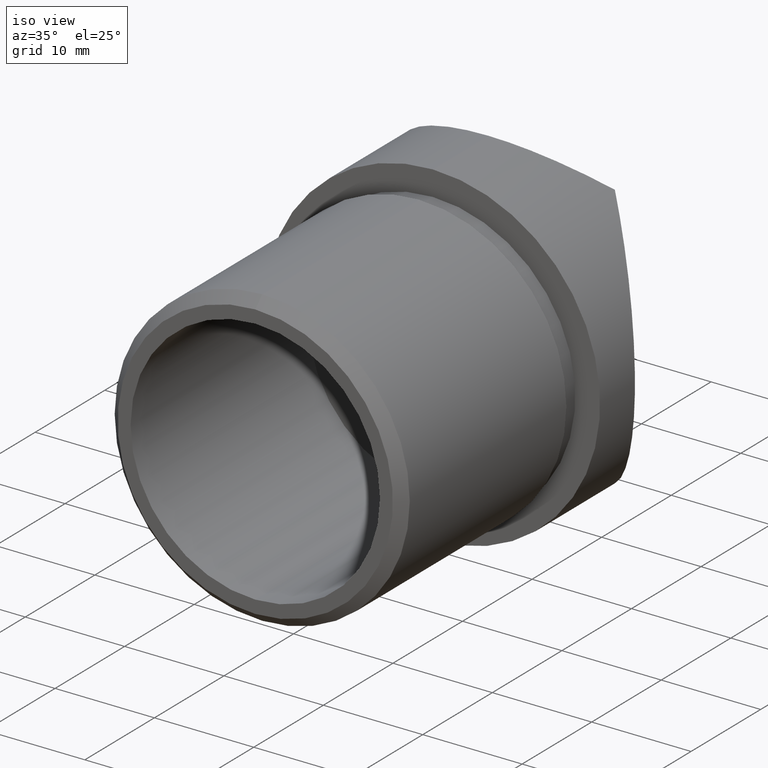
[diagram: clean part render]
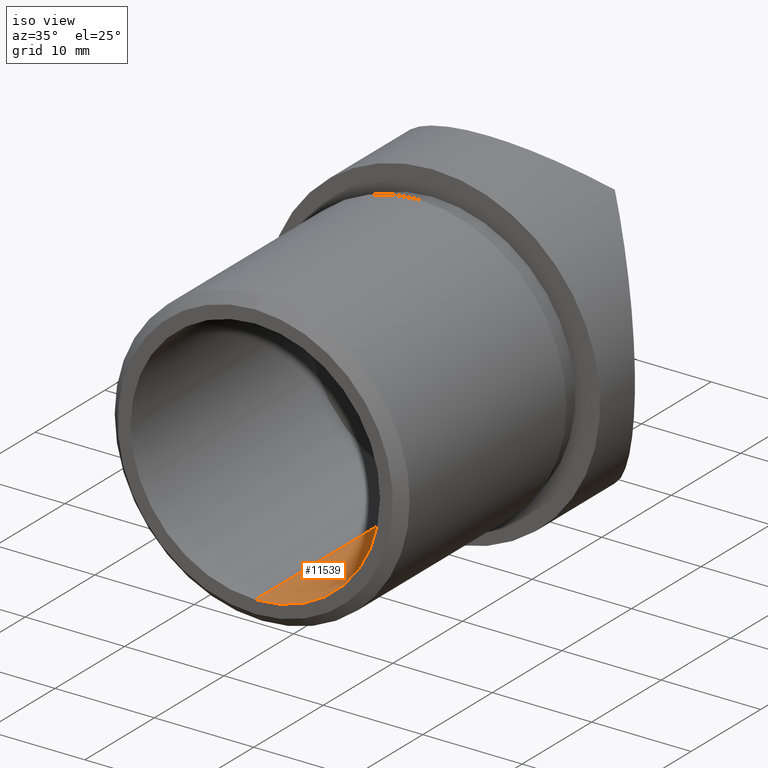
[diagram: same view with one face highlighted and labeled with its STEP entity id]
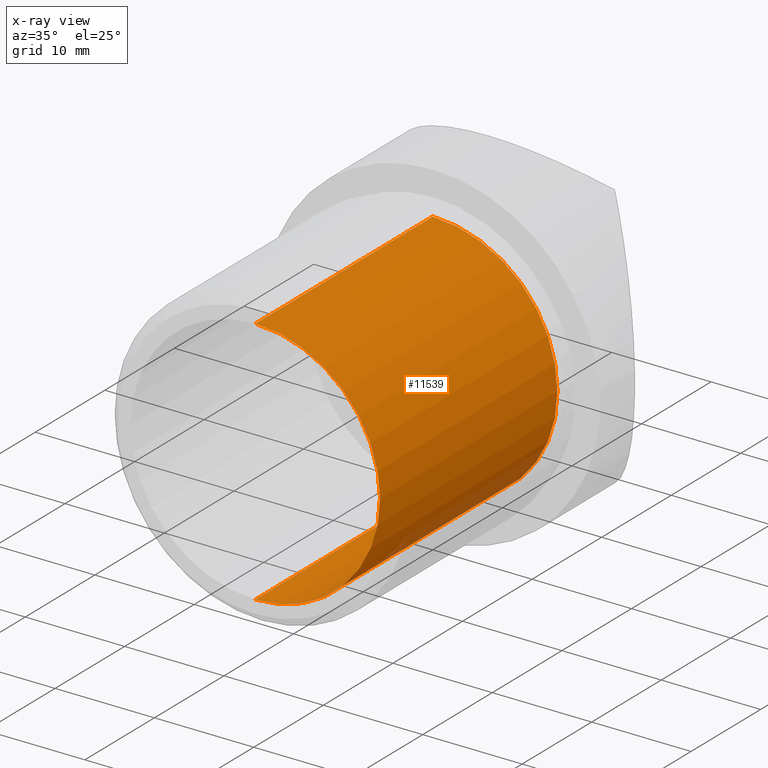
[diagram: x-ray of the same camera — body ghosted, the highlighted face saturated]
A machine part, iso view. The second image highlights one B-rep face of the part: STEP entity #11539.
The next image is the same camera in x-ray: the body ghosted, the highlighted face saturated — about 3% of this face is hidden behind the body in this view.
In plain terms, the highlighted cylindrical surface (partial cylindrical patch) has radius 12.55 mm, axis along (-0, 1, -0).
Its self-contained STEP definition (entity closure, byte-faithful):
#186 = CARTESIAN_POINT ( 'NONE',  ( 0.0000000000000000000, -25.50000000000000400, 0.0000000000000000000 ) ) ;
#304 = DIRECTION ( 'NONE',  ( -0.0000000000000000000, 1.000000000000000000, -0.0000000000000000000 ) ) ;
#387 = DIRECTION ( 'NONE',  ( 0.0000000000000000000, 0.0000000000000000000, 1.000000000000000000 ) ) ;
#593 = ORIENTED_EDGE ( 'NONE', *, *, #1679, .F. ) ;
#1050 = LINE ( 'NONE', #4892, #8377 ) ;
#1201 = DIRECTION ( 'NONE',  ( 0.0000000000000000000, 0.0000000000000000000, -1.000000000000000000 ) ) ;
#1203 = VERTEX_POINT ( 'NONE', #6114 ) ;
#1679 = EDGE_CURVE ( 'NONE', #12928, #1203, #1050, .T. ) ;
#1760 = CARTESIAN_POINT ( 'NONE',  ( 0.0000000000000000000, -2.000000000000000000, 12.55000000000000100 ) ) ;
#2168 = ORIENTED_EDGE ( 'NONE', *, *, #7227, .T. ) ;
#2666 = CIRCLE ( 'NONE', #6760, 12.55000000000000100 ) ;
#2823 = DIRECTION ( 'NONE',  ( -0.0000000000000000000, 1.000000000000000000, -0.0000000000000000000 ) ) ;
#3652 = VECTOR ( 'NONE', #6746, 1000.000000000000000 ) ;
#4325 = CARTESIAN_POINT ( 'NONE',  ( 0.0000000000000000000, -2.000000000000000000, 0.0000000000000000000 ) ) ;
#4369 = AXIS2_PLACEMENT_3D ( 'NONE', #11791, #5800, #12798 ) ;
#4586 = CYLINDRICAL_SURFACE ( 'NONE', #10561, 12.55000000000000100 ) ;
#4892 = CARTESIAN_POINT ( 'NONE',  ( 1.536931732929928400E-015, -2.000000000000000000, -12.55000000000000100 ) ) ;
#5127 = ORIENTED_EDGE ( 'NONE', *, *, #11796, .T. ) ;
#5647 = CARTESIAN_POINT ( 'NONE',  ( 1.536931732929928400E-015, -25.50000000000000400, -12.55000000000000100 ) ) ;
#5657 = VERTEX_POINT ( 'NONE', #9645 ) ;
#5800 = DIRECTION ( 'NONE',  ( 0.0000000000000000000, -1.000000000000000000, 0.0000000000000000000 ) ) ;
#6114 = CARTESIAN_POINT ( 'NONE',  ( 1.536931732929928400E-015, 0.0000000000000000000, -12.55000000000000100 ) ) ;
#6270 = EDGE_CURVE ( 'NONE', #1203, #11105, #10008, .T. ) ;
#6746 = DIRECTION ( 'NONE',  ( -0.0000000000000000000, 1.000000000000000000, -0.0000000000000000000 ) ) ;
#6760 = AXIS2_PLACEMENT_3D ( 'NONE', #186, #7163, #1201 ) ;
#7163 = DIRECTION ( 'NONE',  ( 0.0000000000000000000, -1.000000000000000000, 0.0000000000000000000 ) ) ;
#7227 = EDGE_CURVE ( 'NONE', #12928, #5657, #2666, .T. ) ;
#8377 = VECTOR ( 'NONE', #2823, 1000.000000000000000 ) ;
#9645 = CARTESIAN_POINT ( 'NONE',  ( 0.0000000000000000000, -25.50000000000000400, 12.55000000000000100 ) ) ;
#10008 = CIRCLE ( 'NONE', #4369, 12.55000000000000100 ) ;
#10020 = EDGE_LOOP ( 'NONE', ( #593, #2168, #5127, #10741 ) ) ;
#10561 = AXIS2_PLACEMENT_3D ( 'NONE', #4325, #304, #387 ) ;
#10741 = ORIENTED_EDGE ( 'NONE', *, *, #6270, .F. ) ;
#11041 = CARTESIAN_POINT ( 'NONE',  ( 0.0000000000000000000, 0.0000000000000000000, 12.55000000000000100 ) ) ;
#11105 = VERTEX_POINT ( 'NONE', #11041 ) ;
#11289 = LINE ( 'NONE', #1760, #3652 ) ;
#11539 = ADVANCED_FACE ( 'NONE', ( #12531 ), #4586, .F. ) ;
#11791 = CARTESIAN_POINT ( 'NONE',  ( 0.0000000000000000000, 0.0000000000000000000, 0.0000000000000000000 ) ) ;
#11796 = EDGE_CURVE ( 'NONE', #5657, #11105, #11289, .T. ) ;
#12531 = FACE_OUTER_BOUND ( 'NONE', #10020, .T. ) ;
#12798 = DIRECTION ( 'NONE',  ( 0.0000000000000000000, 0.0000000000000000000, -1.000000000000000000 ) ) ;
#12928 = VERTEX_POINT ( 'NONE', #5647 ) ;